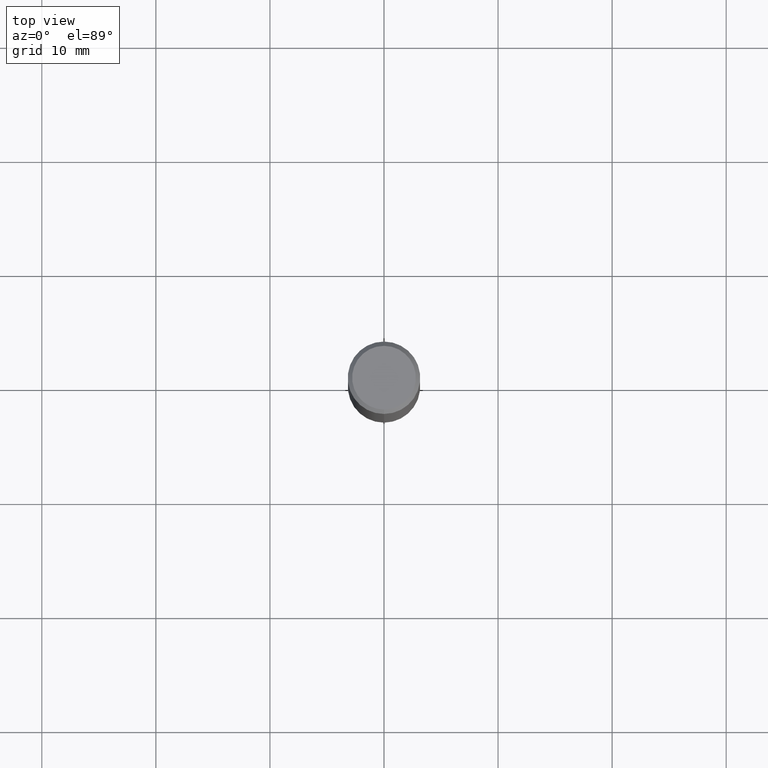
[diagram: clean part render]
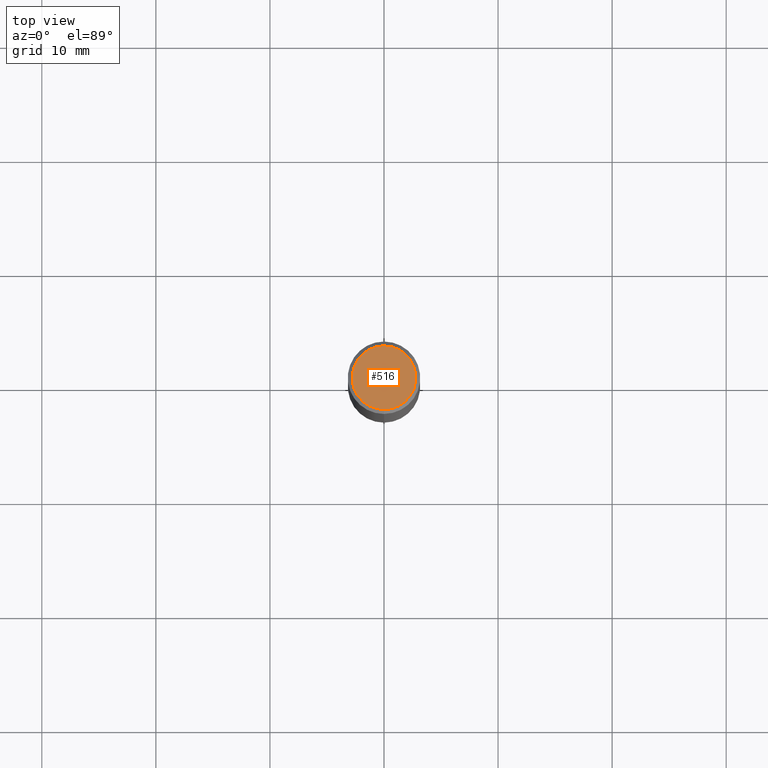
[diagram: same view with one face highlighted and labeled with its STEP entity id]
A machine part, top view. The second image highlights one B-rep face of the part: STEP entity #516.
In plain terms, the highlighted planar face has unit normal (0, -0, -1).
Its self-contained STEP definition (entity closure, byte-faithful):
#6 = AXIS2_PLACEMENT_3D ( 'NONE', #406, #161, #45 ) ;
#12 = CARTESIAN_POINT ( 'NONE',  ( 8.204981146281365554E-16, 0.1100000000000000283, -3.975340620633669494E-16 ) ) ;
#45 = DIRECTION ( 'NONE',  ( -6.982962677686265922E-15, -1.000000000000000000, 3.491269492568914221E-15 ) ) ;
#50 = EDGE_LOOP ( 'NONE', ( #105, #218 ) ) ;
#92 = EDGE_CURVE ( 'NONE', #368, #166, #285, .T. ) ;
#105 = ORIENTED_EDGE ( 'NONE', *, *, #120, .T. ) ;
#120 = EDGE_CURVE ( 'NONE', #166, #368, #428, .T. ) ;
#151 = AXIS2_PLACEMENT_3D ( 'NONE', #228, #187, #362 ) ;
#152 = AXIS2_PLACEMENT_3D ( 'NONE', #158, #395, #318 ) ;
#156 = FACE_OUTER_BOUND ( 'NONE', #50, .T. ) ;
#158 = CARTESIAN_POINT ( 'NONE',  ( 7.681258945454894762E-16, 0.1100000000000000283, -3.907868531229737716E-16 ) ) ;
#161 = DIRECTION ( 'NONE',  ( -2.445616737647772983E-29, 3.491269492568914221E-15, 1.000000000000000000 ) ) ;
#166 = VERTEX_POINT ( 'NONE', #12 ) ;
#187 = DIRECTION ( 'NONE',  ( -2.445616737647772983E-29, 3.491269492568914221E-15, 1.000000000000000000 ) ) ;
#218 = ORIENTED_EDGE ( 'NONE', *, *, #92, .T. ) ;
#228 = CARTESIAN_POINT ( 'NONE',  ( 3.300217423406445068E-46, -4.711264946716579203E-32, -1.349441788078633552E-17 ) ) ;
#285 = CIRCLE ( 'NONE', #151, 0.1100000000000000283 ) ;
#318 = DIRECTION ( 'NONE',  ( 6.982962677686265922E-15, 1.000000000000000000, -3.491269492568914221E-15 ) ) ;
#357 = PLANE ( 'NONE',  #152 ) ;
#362 = DIRECTION ( 'NONE',  ( -6.982962677686265922E-15, -1.000000000000000000, 3.491269492568914221E-15 ) ) ;
#368 = VERTEX_POINT ( 'NONE', #500 ) ;
#395 = DIRECTION ( 'NONE',  ( 2.445616737647772703E-29, -3.491269492568914221E-15, -1.000000000000000000 ) ) ;
#406 = CARTESIAN_POINT ( 'NONE',  ( 3.300217423406445068E-46, -4.711264946716579203E-32, -1.349441788078633552E-17 ) ) ;
#428 = CIRCLE ( 'NONE', #6, 0.1100000000000000283 ) ;
#500 = CARTESIAN_POINT ( 'NONE',  ( -8.061085147381547495E-16, -0.1100000000000000283, 3.705452263017942876E-16 ) ) ;
#516 = ADVANCED_FACE ( 'NONE', ( #156 ), #357, .F. ) ;